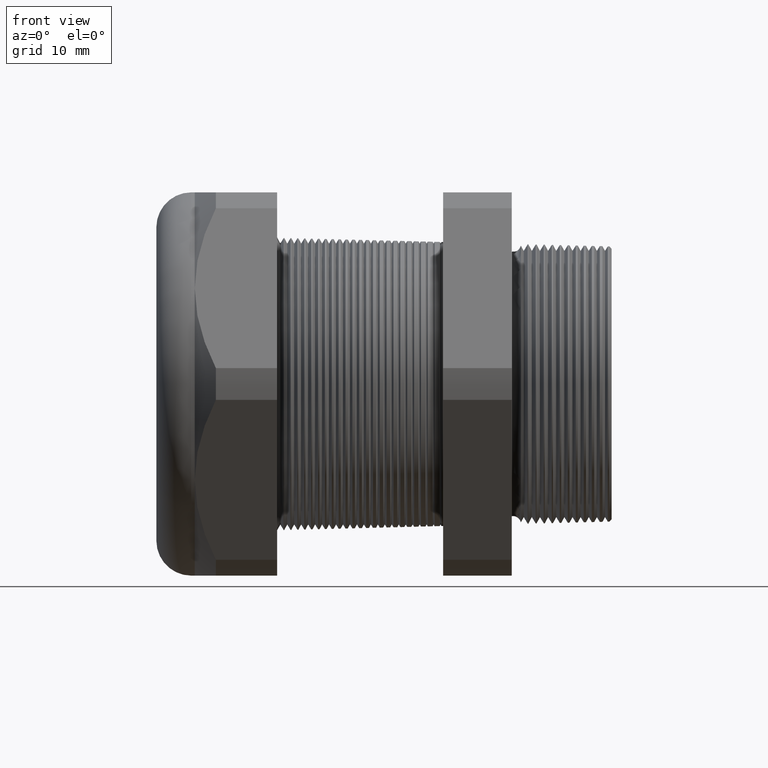
[diagram: clean part render]
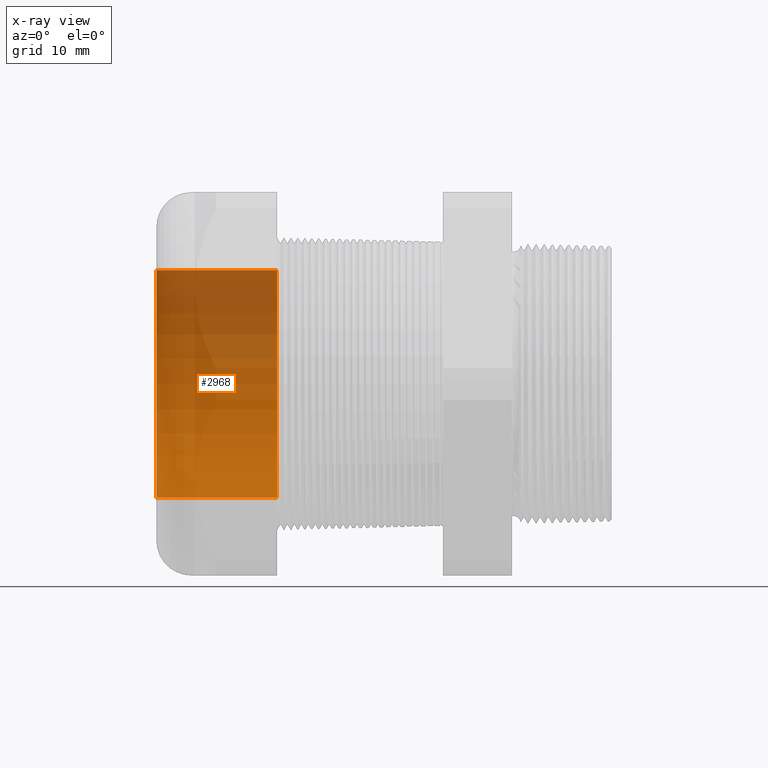
[diagram: x-ray — body ghosted, one internal face saturated and labeled with its STEP entity id]
A machine part, front view, then the same camera in x-ray: the body is ghosted and one INTERNAL B-rep face — a face not visible from any outside direction — is saturated and labeled: STEP entity #2968.
In plain terms, the highlighted cylindrical surface (partial cylindrical patch) has radius 12.446 mm, axis along (1, 0, 0).
Its self-contained STEP definition (entity closure, byte-faithful):
#98 = DIRECTION ( 'NONE',  ( 1.000000000000000000, 0.0000000000000000000, 0.0000000000000000000 ) ) ;
#99 = VECTOR ( 'NONE', #98, 39.37007874015748100 ) ;
#100 = CARTESIAN_POINT ( 'NONE',  ( 0.0000000000000000000, 0.0000000000000000000, -0.4899999999999999900 ) ) ;
#101 = LINE ( 'NONE', #100, #99 ) ;
#129 = CARTESIAN_POINT ( 'NONE',  ( -1.320314960629921200, 6.000769315822029800E-017, -0.4899999999999999900 ) ) ;
#130 = CARTESIAN_POINT ( 'NONE',  ( -1.320314960629921200, 0.0000000000000000000, 0.4899999999999999900 ) ) ;
#136 = DIRECTION ( 'NONE',  ( 1.000000000000000000, 0.0000000000000000000, 0.0000000000000000000 ) ) ;
#137 = VECTOR ( 'NONE', #136, 39.37007874015748100 ) ;
#138 = CARTESIAN_POINT ( 'NONE',  ( 0.0000000000000000000, 6.000769315822029800E-017, 0.4899999999999999900 ) ) ;
#139 = LINE ( 'NONE', #138, #137 ) ;
#140 = CARTESIAN_POINT ( 'NONE',  ( -1.840000000000000100, 6.000769315822029800E-017, 0.4899999999999999900 ) ) ;
#142 = CARTESIAN_POINT ( 'NONE',  ( -1.840000000000000100, 0.0000000000000000000, -0.4899999999999999900 ) ) ;
#2714 = EDGE_CURVE ( 'NONE', #3391, #3389, #6115, .T. ) ;
#2739 = ORIENTED_EDGE ( 'NONE', *, *, #2714, .T. ) ;
#2961 = ORIENTED_EDGE ( 'NONE', *, *, #2963, .F. ) ;
#2962 = ORIENTED_EDGE ( 'NONE', *, *, #3386, .F. ) ;
#2963 = EDGE_CURVE ( 'NONE', #3381, #3385, #6623, .T. ) ;
#2964 = EDGE_LOOP ( 'NONE', ( #2962, #2961, #2981, #2739 ) ) ;
#2968 = ADVANCED_FACE ( 'NONE', ( #6671 ), #6670, .F. ) ;
#2981 = ORIENTED_EDGE ( 'NONE', *, *, #3372, .T. ) ;
#3372 = EDGE_CURVE ( 'NONE', #3381, #3391, #101, .T. ) ;
#3381 = VERTEX_POINT ( 'NONE', #142 ) ;
#3385 = VERTEX_POINT ( 'NONE', #140 ) ;
#3386 = EDGE_CURVE ( 'NONE', #3385, #3389, #139, .T. ) ;
#3389 = VERTEX_POINT ( 'NONE', #130 ) ;
#3391 = VERTEX_POINT ( 'NONE', #129 ) ;
#6115 = CIRCLE ( 'NONE', #6173, 0.4899999999999999900 ) ;
#6170 = DIRECTION ( 'NONE',  ( 0.0000000000000000000, 0.0000000000000000000, -1.000000000000000000 ) ) ;
#6171 = DIRECTION ( 'NONE',  ( 1.000000000000000000, 0.0000000000000000000, 0.0000000000000000000 ) ) ;
#6172 = CARTESIAN_POINT ( 'NONE',  ( -1.320314960629921200, 0.0000000000000000000, 0.0000000000000000000 ) ) ;
#6173 = AXIS2_PLACEMENT_3D ( 'NONE', #6172, #6171, #6170 ) ;
#6619 = DIRECTION ( 'NONE',  ( 0.0000000000000000000, 0.0000000000000000000, -1.000000000000000000 ) ) ;
#6620 = DIRECTION ( 'NONE',  ( 1.000000000000000000, 0.0000000000000000000, 0.0000000000000000000 ) ) ;
#6621 = CARTESIAN_POINT ( 'NONE',  ( -1.840000000000000100, 0.0000000000000000000, 0.0000000000000000000 ) ) ;
#6622 = AXIS2_PLACEMENT_3D ( 'NONE', #6621, #6620, #6619 ) ;
#6623 = CIRCLE ( 'NONE', #6622, 0.4899999999999999900 ) ;
#6665 = DIRECTION ( 'NONE',  ( 0.0000000000000000000, 0.0000000000000000000, -1.000000000000000000 ) ) ;
#6666 = DIRECTION ( 'NONE',  ( 1.000000000000000000, 0.0000000000000000000, 0.0000000000000000000 ) ) ;
#6667 = CARTESIAN_POINT ( 'NONE',  ( 0.0000000000000000000, 0.0000000000000000000, 0.0000000000000000000 ) ) ;
#6668 = AXIS2_PLACEMENT_3D ( 'NONE', #6667, #6666, #6665 ) ;
#6670 = CYLINDRICAL_SURFACE ( 'NONE', #6668, 0.4899999999999999900 ) ;
#6671 = FACE_OUTER_BOUND ( 'NONE', #2964, .T. ) ;